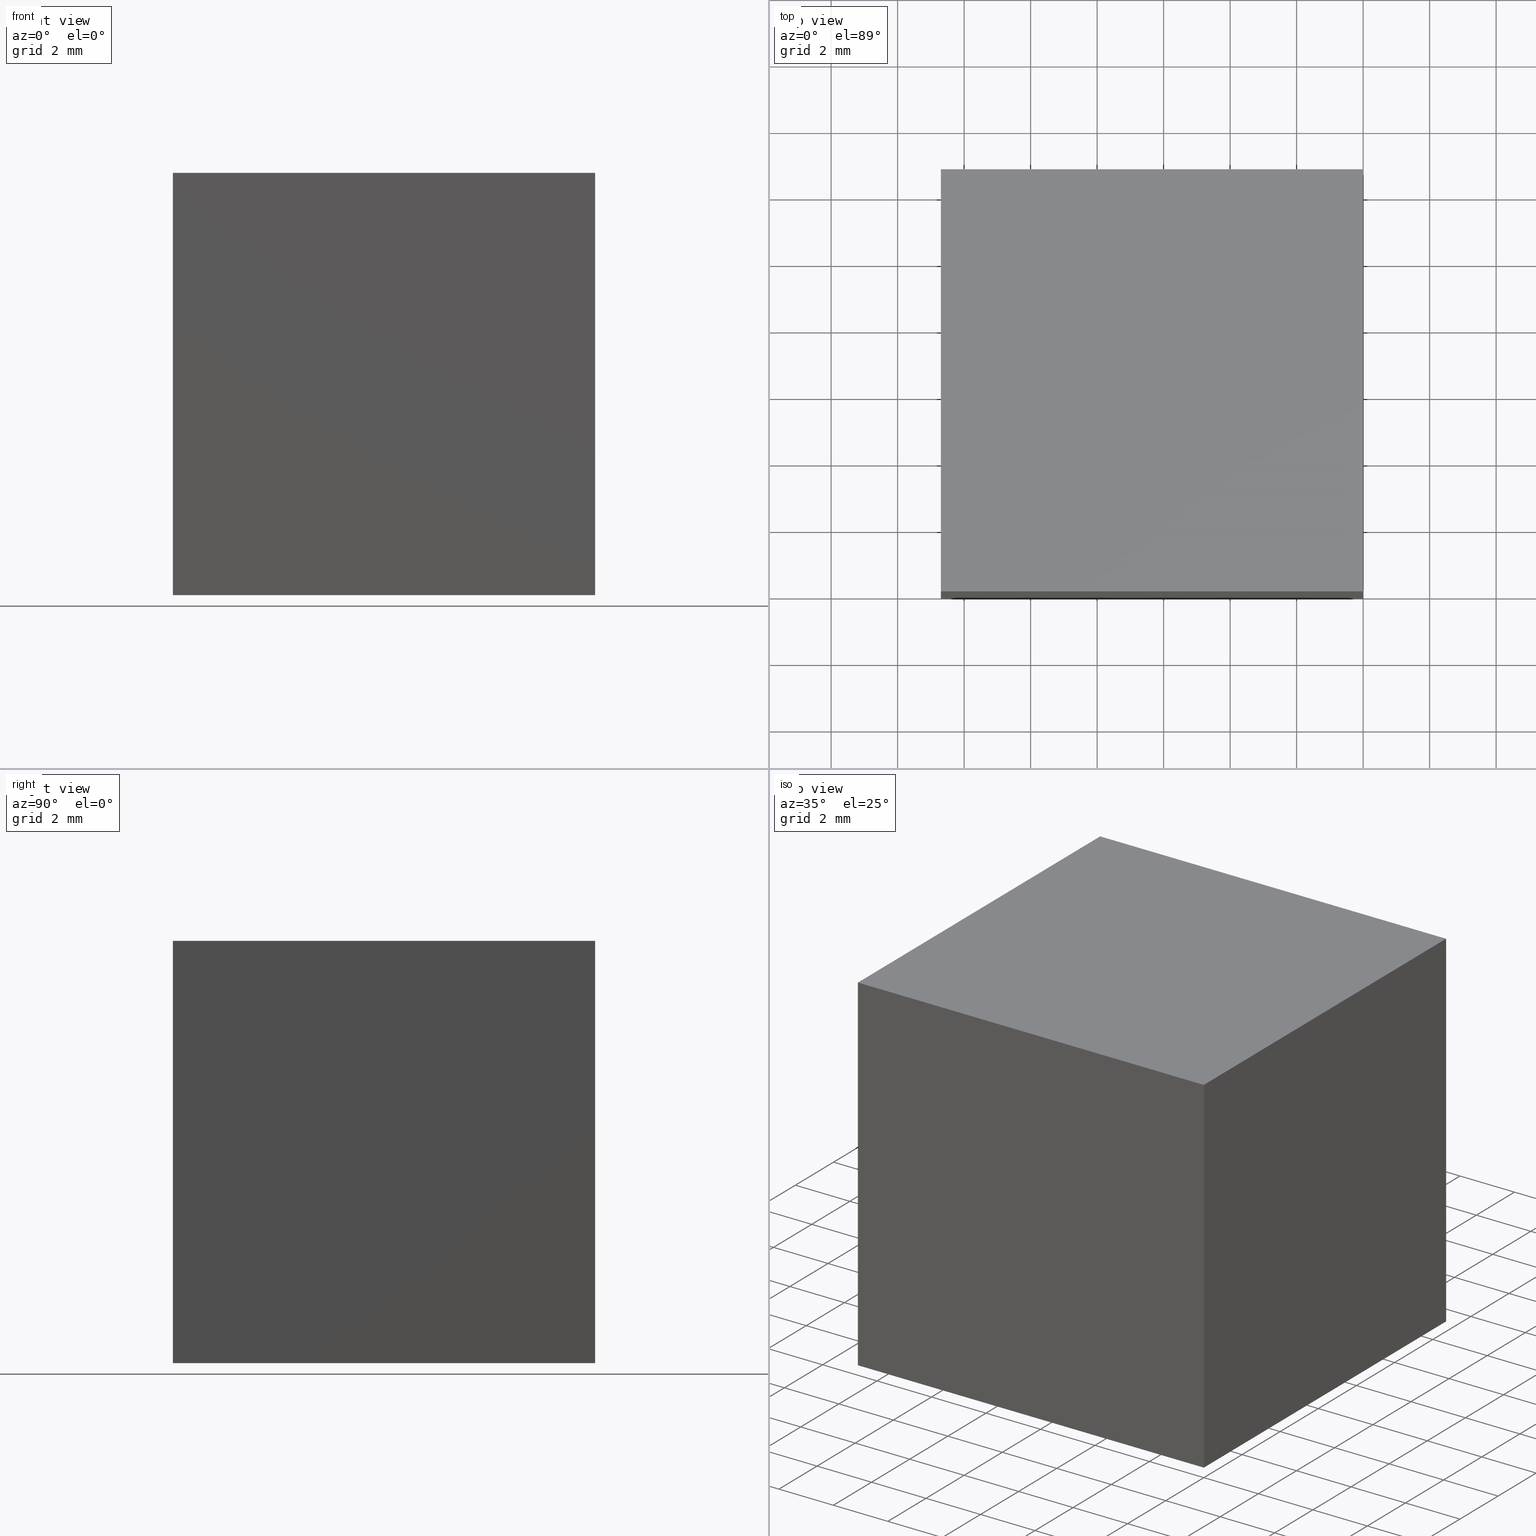
[diagram: canonical four-view strip — front | top / right | iso, engineering-drawing reading convention]
A machine part, canonical four-view strip (front | top / right | iso — engineering-drawing reading convention). The complete STEP part file that produces these views, byte-faithful:
ISO-10303-21;
HEADER;
FILE_DESCRIPTION (( 'STEP AP214' ),
    '1' );
FILE_NAME ('452005.STEP',
    '2019-08-22T06:23:18',
    ( 'user' ),
    ( '΢���й�' ),
    'SwSTEP 2.0',
    'SolidWorks 2016',
    '' );
FILE_SCHEMA (( 'AUTOMOTIVE_DESIGN' ));
ENDSEC;

DATA;
#1 = ORIENTED_EDGE ( 'NONE', *, *, #207, .T. ) ;
#2 = ADVANCED_FACE ( 'NONE', ( #19 ), #66, .T. ) ;
#3 = LINE ( 'NONE', #285, #12 ) ;
#4 = VERTEX_POINT ( 'NONE', #122 ) ;
#5 = PRODUCT_RELATED_PRODUCT_CATEGORY ( 'part', '', ( #282 ) ) ;
#6 = ORIENTED_EDGE ( 'NONE', *, *, #207, .F. ) ;
#7 = CARTESIAN_POINT ( 'NONE',  ( 0.0000000000000000000, 0.0000000000000000000, 0.0000000000000000000 ) ) ;
#8 = VECTOR ( 'NONE', #185, 1000.000000000000000 ) ;
#9 = PRODUCT_DEFINITION_CONTEXT ( 'detailed design', #38, 'design' ) ;
#10 =( GEOMETRIC_REPRESENTATION_CONTEXT ( 3 ) GLOBAL_UNCERTAINTY_ASSIGNED_CONTEXT ( ( #17 ) ) GLOBAL_UNIT_ASSIGNED_CONTEXT ( ( #269, #170, #18 ) ) REPRESENTATION_CONTEXT ( 'NONE', 'WORKASPACE' ) );
#11 = PLANE ( 'NONE',  #239 ) ;
#12 = VECTOR ( 'NONE', #87, 1000.000000000000000 ) ;
#13 = ORIENTED_EDGE ( 'NONE', *, *, #228, .F. ) ;
#14 = PRODUCT_CONTEXT ( 'NONE', #102, 'mechanical' ) ;
#15 = ORIENTED_EDGE ( 'NONE', *, *, #135, .F. ) ;
#16 = LINE ( 'NONE', #101, #190 ) ;
#17 = UNCERTAINTY_MEASURE_WITH_UNIT (LENGTH_MEASURE( 1.000000000000000100E-005 ), #269, 'distance_accuracy_value', 'NONE');
#18 =( NAMED_UNIT ( * ) SI_UNIT ( $, .STERADIAN. ) SOLID_ANGLE_UNIT ( ) );
#19 = FACE_OUTER_BOUND ( 'NONE', #100, .T. ) ;
#20 = LINE ( 'NONE', #195, #35 ) ;
#21 = FILL_AREA_STYLE_COLOUR ( '', #201 ) ;
#22 = AXIS2_PLACEMENT_3D ( 'NONE', #27, #173, #230 ) ;
#23 = CARTESIAN_POINT ( 'NONE',  ( 0.0000000000000000000, 12.69999999999999900, 0.0000000000000000000 ) ) ;
#24 = CARTESIAN_POINT ( 'NONE',  ( -12.69999999999999900, 12.69999999999999900, -12.69999999999999800 ) ) ;
#25 =( LENGTH_UNIT ( ) NAMED_UNIT ( * ) SI_UNIT ( .MILLI., .METRE. ) );
#26 = AXIS2_PLACEMENT_3D ( 'NONE', #65, #229, #44 ) ;
#27 = CARTESIAN_POINT ( 'NONE',  ( -12.69999999999999900, 12.69999999999999900, -12.69999999999999800 ) ) ;
#28 = FACE_OUTER_BOUND ( 'NONE', #131, .T. ) ;
#29 = PRESENTATION_STYLE_ASSIGNMENT (( #198 ) ) ;
#30 = ADVANCED_FACE ( 'NONE', ( #263 ), #222, .T. ) ;
#31 = ORIENTED_EDGE ( 'NONE', *, *, #130, .F. ) ;
#32 = CARTESIAN_POINT ( 'NONE',  ( -12.69999999999999900, 12.69999999999999900, 0.0000000000000000000 ) ) ;
#33 = ORIENTED_EDGE ( 'NONE', *, *, #142, .T. ) ;
#34 = CARTESIAN_POINT ( 'NONE',  ( -12.69999999999999900, 0.0000000000000000000, 0.0000000000000000000 ) ) ;
#35 = VECTOR ( 'NONE', #171, 1000.000000000000000 ) ;
#36 = CARTESIAN_POINT ( 'NONE',  ( -12.69999999999999900, 12.69999999999999900, 0.0000000000000000000 ) ) ;
#37 = DIRECTION ( 'NONE',  ( 0.0000000000000000000, -0.0000000000000000000, 1.000000000000000000 ) ) ;
#38 = APPLICATION_CONTEXT ( 'automotive_design' ) ;
#39 = CARTESIAN_POINT ( 'NONE',  ( 0.0000000000000000000, 0.0000000000000000000, 0.0000000000000000000 ) ) ;
#40 = ORIENTED_EDGE ( 'NONE', *, *, #156, .T. ) ;
#41 = PLANE ( 'NONE',  #136 ) ;
#42 = VERTEX_POINT ( 'NONE', #248 ) ;
#43 = LINE ( 'NONE', #152, #223 ) ;
#44 = DIRECTION ( 'NONE',  ( 0.0000000000000000000, -0.0000000000000000000, 1.000000000000000000 ) ) ;
#45 = SURFACE_SIDE_STYLE ('',( #107 ) ) ;
#46 = CARTESIAN_POINT ( 'NONE',  ( -12.69999999999999900, 12.69999999999999900, 0.0000000000000000000 ) ) ;
#47 = EDGE_LOOP ( 'NONE', ( #31, #297, #13 ) ) ;
#48 = AXIS2_PLACEMENT_3D ( 'NONE', #219, #110, #225 ) ;
#49 = ORIENTED_EDGE ( 'NONE', *, *, #157, .T. ) ;
#50 = LINE ( 'NONE', #274, #74 ) ;
#51 = ADVANCED_FACE ( 'NONE', ( #133 ), #85, .F. ) ;
#52 = ORIENTED_EDGE ( 'NONE', *, *, #114, .T. ) ;
#53 = FACE_OUTER_BOUND ( 'NONE', #256, .T. ) ;
#54 = CARTESIAN_POINT ( 'NONE',  ( 0.0000000000000000000, 12.69999999999999900, 0.0000000000000000000 ) ) ;
#55 = DIRECTION ( 'NONE',  ( -0.0000000000000000000, -1.000000000000000000, -0.0000000000000000000 ) ) ;
#56 = CARTESIAN_POINT ( 'NONE',  ( -12.69999999999999900, 0.0000000000000000000, -12.69999999999999800 ) ) ;
#57 = FACE_OUTER_BOUND ( 'NONE', #91, .T. ) ;
#58 =( LENGTH_UNIT ( ) NAMED_UNIT ( * ) SI_UNIT ( .MILLI., .METRE. ) );
#59 = EDGE_LOOP ( 'NONE', ( #205, #208, #76, #73 ) ) ;
#60 = VECTOR ( 'NONE', #121, 1000.000000000000000 ) ;
#61 = DIRECTION ( 'NONE',  ( 0.7071067811865475700, 0.0000000000000000000, 0.7071067811865474600 ) ) ;
#62 = VERTEX_POINT ( 'NONE', #151 ) ;
#63 = FILL_AREA_STYLE_COLOUR ( '', #287 ) ;
#64 = STYLED_ITEM ( 'NONE', ( #29 ), #111 ) ;
#65 = CARTESIAN_POINT ( 'NONE',  ( 0.0000000000000000000, 12.69999999999999900, 0.0000000000000000000 ) ) ;
#66 = PLANE ( 'NONE',  #26 ) ;
#67 = DIRECTION ( 'NONE',  ( 0.0000000000000000000, 0.0000000000000000000, -1.000000000000000000 ) ) ;
#68 = PLANE ( 'NONE',  #78 ) ;
#69 = CARTESIAN_POINT ( 'NONE',  ( 0.0000000000000000000, 12.69999999999999900, 0.0000000000000000000 ) ) ;
#70 = VECTOR ( 'NONE', #271, 1000.000000000000000 ) ;
#71 = ORIENTED_EDGE ( 'NONE', *, *, #174, .F. ) ;
#72 = EDGE_LOOP ( 'NONE', ( #226, #81, #15, #183 ) ) ;
#73 = ORIENTED_EDGE ( 'NONE', *, *, #259, .T. ) ;
#74 = VECTOR ( 'NONE', #270, 1000.000000000000000 ) ;
#75 = LINE ( 'NONE', #105, #253 ) ;
#76 = ORIENTED_EDGE ( 'NONE', *, *, #243, .F. ) ;
#77 = VECTOR ( 'NONE', #88, 1000.000000000000000 ) ;
#78 = AXIS2_PLACEMENT_3D ( 'NONE', #252, #148, #200 ) ;
#79 = CARTESIAN_POINT ( 'NONE',  ( -12.69999999999999900, 12.69999999999999900, -12.69999999999999800 ) ) ;
#80 = DIRECTION ( 'NONE',  ( -1.000000000000000000, 0.0000000000000000000, 1.365923996832131600E-016 ) ) ;
#81 = ORIENTED_EDGE ( 'NONE', *, *, #259, .F. ) ;
#82 = PLANE ( 'NONE',  #164 ) ;
#83 =( NAMED_UNIT ( * ) SI_UNIT ( $, .STERADIAN. ) SOLID_ANGLE_UNIT ( ) );
#84 = SURFACE_STYLE_FILL_AREA ( #212 ) ;
#85 = PLANE ( 'NONE',  #48 ) ;
#86 = ORIENTED_EDGE ( 'NONE', *, *, #176, .F. ) ;
#87 = DIRECTION ( 'NONE',  ( -0.0000000000000000000, -1.000000000000000000, -0.0000000000000000000 ) ) ;
#88 = DIRECTION ( 'NONE',  ( 0.7071067811865475700, 0.0000000000000000000, 0.7071067811865474600 ) ) ;
#89 = DIRECTION ( 'NONE',  ( 0.0000000000000000000, -1.000000000000000000, 0.0000000000000000000 ) ) ;
#90 = PRESENTATION_LAYER_ASSIGNMENT (  '', '', ( #64 ) ) ;
#91 = EDGE_LOOP ( 'NONE', ( #147, #199, #161, #97 ) ) ;
#92 =( GEOMETRIC_REPRESENTATION_CONTEXT ( 3 ) GLOBAL_UNCERTAINTY_ASSIGNED_CONTEXT ( ( #115 ) ) GLOBAL_UNIT_ASSIGNED_CONTEXT ( ( #25, #150, #300 ) ) REPRESENTATION_CONTEXT ( 'NONE', 'WORKASPACE' ) );
#93 = LINE ( 'NONE', #79, #8 ) ;
#94 = ADVANCED_FACE ( 'NONE', ( #192 ), #68, .T. ) ;
#95 = ORIENTED_EDGE ( 'NONE', *, *, #145, .F. ) ;
#96 = CARTESIAN_POINT ( 'NONE',  ( 0.0000000000000000000, 12.69999999999999900, 0.0000000000000000000 ) ) ;
#97 = ORIENTED_EDGE ( 'NONE', *, *, #233, .T. ) ;
#98 = VECTOR ( 'NONE', #67, 1000.000000000000000 ) ;
#99 = SHAPE_DEFINITION_REPRESENTATION ( #288, #262 ) ;
#100 = EDGE_LOOP ( 'NONE', ( #154, #153, #71 ) ) ;
#101 = CARTESIAN_POINT ( 'NONE',  ( -12.69999999999999900, 12.69999999999999900, -12.69999999999999800 ) ) ;
#102 = APPLICATION_CONTEXT ( 'automotive_design' ) ;
#103 = APPLICATION_PROTOCOL_DEFINITION ( 'draft international standard', 'automotive_design', 1998, #102 ) ;
#104 = VERTEX_POINT ( 'NONE', #194 ) ;
#105 = CARTESIAN_POINT ( 'NONE',  ( -12.69999999999999900, 12.69999999999999900, -12.69999999999999800 ) ) ;
#106 = MECHANICAL_DESIGN_GEOMETRIC_PRESENTATION_REPRESENTATION (  '', ( #64 ), #118 ) ;
#107 = SURFACE_STYLE_FILL_AREA ( #159 ) ;
#108 = DIRECTION ( 'NONE',  ( 0.0000000000000000000, -0.0000000000000000000, 1.000000000000000000 ) ) ;
#109 = LINE ( 'NONE', #289, #290 ) ;
#110 = DIRECTION ( 'NONE',  ( 1.365923996832131600E-016, -0.0000000000000000000, 1.000000000000000000 ) ) ;
#111 = MANIFOLD_SOLID_BREP ( '͹̨-����1', #215 ) ;
#112 = ORIENTED_EDGE ( 'NONE', *, *, #206, .F. ) ;
#113 = ADVANCED_FACE ( 'NONE', ( #53 ), #129, .T. ) ;
#114 = EDGE_CURVE ( 'NONE', #4, #246, #279, .T. ) ;
#115 = UNCERTAINTY_MEASURE_WITH_UNIT (LENGTH_MEASURE( 1.000000000000000100E-005 ), #25, 'distance_accuracy_value', 'NONE');
#116 = VECTOR ( 'NONE', #242, 1000.000000000000000 ) ;
#117 = DIRECTION ( 'NONE',  ( 0.0000000000000000000, 1.000000000000000000, 0.0000000000000000000 ) ) ;
#118 =( GEOMETRIC_REPRESENTATION_CONTEXT ( 3 ) GLOBAL_UNCERTAINTY_ASSIGNED_CONTEXT ( ( #254 ) ) GLOBAL_UNIT_ASSIGNED_CONTEXT ( ( #293, #125, #250 ) ) REPRESENTATION_CONTEXT ( 'NONE', 'WORKASPACE' ) );
#119 = DIRECTION ( 'NONE',  ( -0.0000000000000000000, -1.000000000000000000, -0.0000000000000000000 ) ) ;
#120 = DIRECTION ( 'NONE',  ( -0.0000000000000000000, 0.0000000000000000000, 1.000000000000000000 ) ) ;
#121 = DIRECTION ( 'NONE',  ( -0.0000000000000000000, -0.0000000000000000000, -1.000000000000000000 ) ) ;
#122 = CARTESIAN_POINT ( 'NONE',  ( -12.69999999999999900, 12.69999999999999900, 0.0000000000000000000 ) ) ;
#123 = VERTEX_POINT ( 'NONE', #267 ) ;
#124 = SURFACE_SIDE_STYLE ('',( #231 ) ) ;
#125 =( NAMED_UNIT ( * ) PLANE_ANGLE_UNIT ( ) SI_UNIT ( $, .RADIAN. ) );
#126 = EDGE_LOOP ( 'NONE', ( #6, #249, #33, #132 ) ) ;
#127 = LINE ( 'NONE', #69, #77 ) ;
#128 = DIRECTION ( 'NONE',  ( -0.7071067811865475700, 0.0000000000000000000, -0.7071067811865474600 ) ) ;
#129 = PLANE ( 'NONE',  #163 ) ;
#130 = EDGE_CURVE ( 'NONE', #291, #123, #43, .T. ) ;
#131 = EDGE_LOOP ( 'NONE', ( #281, #86, #232, #52 ) ) ;
#132 = ORIENTED_EDGE ( 'NONE', *, *, #206, .T. ) ;
#133 = FACE_OUTER_BOUND ( 'NONE', #59, .T. ) ;
#134 = VECTOR ( 'NONE', #227, 1000.000000000000000 ) ;
#135 = EDGE_CURVE ( 'NONE', #181, #245, #211, .T. ) ;
#136 = AXIS2_PLACEMENT_3D ( 'NONE', #24, #298, #128 ) ;
#137 = ADVANCED_FACE ( 'NONE', ( #155 ), #209, .F. ) ;
#138 = MANIFOLD_SOLID_BREP ( '͹̨-����2', #177 ) ;
#139 = DIRECTION ( 'NONE',  ( 0.0000000000000000000, 0.0000000000000000000, 1.000000000000000000 ) ) ;
#140 = EDGE_LOOP ( 'NONE', ( #95, #112, #49, #278 ) ) ;
#141 = DIRECTION ( 'NONE',  ( 0.0000000000000000000, -0.0000000000000000000, 1.000000000000000000 ) ) ;
#142 = EDGE_CURVE ( 'NONE', #4, #234, #93, .T. ) ;
#143 = CARTESIAN_POINT ( 'NONE',  ( -12.69999999999999900, -0.0000000000000000000, -12.69999999999999800 ) ) ;
#144 = FILL_AREA_STYLE ('',( #294 ) ) ;
#145 = EDGE_CURVE ( 'NONE', #62, #104, #50, .T. ) ;
#146 = PRESENTATION_STYLE_ASSIGNMENT (( #296 ) ) ;
#147 = ORIENTED_EDGE ( 'NONE', *, *, #130, .T. ) ;
#148 = DIRECTION ( 'NONE',  ( 0.7071067811865474600, 0.0000000000000000000, -0.7071067811865475700 ) ) ;
#149 = DIRECTION ( 'NONE',  ( 0.7071067811865475700, 0.0000000000000000000, 0.7071067811865474600 ) ) ;
#150 =( NAMED_UNIT ( * ) PLANE_ANGLE_UNIT ( ) SI_UNIT ( $, .RADIAN. ) );
#151 = CARTESIAN_POINT ( 'NONE',  ( -12.69999999999999900, -0.0000000000000000000, -12.69999999999999800 ) ) ;
#152 = CARTESIAN_POINT ( 'NONE',  ( -12.69999999999999900, 0.0000000000000000000, -12.69999999999999800 ) ) ;
#153 = ORIENTED_EDGE ( 'NONE', *, *, #142, .F. ) ;
#154 = ORIENTED_EDGE ( 'NONE', *, *, #157, .F. ) ;
#155 = FACE_OUTER_BOUND ( 'NONE', #72, .T. ) ;
#156 = EDGE_CURVE ( 'NONE', #104, #246, #162, .T. ) ;
#157 = EDGE_CURVE ( 'NONE', #234, #42, #127, .T. ) ;
#158 = ORIENTED_EDGE ( 'NONE', *, *, #135, .T. ) ;
#159 = FILL_AREA_STYLE ('',( #63 ) ) ;
#160 = CARTESIAN_POINT ( 'NONE',  ( -12.69999999999999900, 0.0000000000000000000, 0.0000000000000000000 ) ) ;
#161 = ORIENTED_EDGE ( 'NONE', *, *, #187, .F. ) ;
#162 = LINE ( 'NONE', #160, #184 ) ;
#163 = AXIS2_PLACEMENT_3D ( 'NONE', #23, #221, #108 ) ;
#164 = AXIS2_PLACEMENT_3D ( 'NONE', #251, #216, #37 ) ;
#165 = DIRECTION ( 'NONE',  ( -1.000000000000000000, 0.0000000000000000000, 1.365923996832131600E-016 ) ) ;
#166 = LINE ( 'NONE', #264, #299 ) ;
#167 = ORIENTED_EDGE ( 'NONE', *, *, #243, .T. ) ;
#168 = PLANE ( 'NONE',  #197 ) ;
#169 = APPLICATION_PROTOCOL_DEFINITION ( 'draft international standard', 'automotive_design', 1998, #38 ) ;
#170 =( NAMED_UNIT ( * ) PLANE_ANGLE_UNIT ( ) SI_UNIT ( $, .RADIAN. ) );
#171 = DIRECTION ( 'NONE',  ( 0.0000000000000000000, -1.000000000000000000, 0.0000000000000000000 ) ) ;
#172 = SURFACE_STYLE_USAGE ( .BOTH. , #45 ) ;
#173 = DIRECTION ( 'NONE',  ( -1.000000000000000000, 0.0000000000000000000, 0.0000000000000000000 ) ) ;
#174 = EDGE_CURVE ( 'NONE', #42, #4, #257, .T. ) ;
#175 = LINE ( 'NONE', #188, #70 ) ;
#176 = EDGE_CURVE ( 'NONE', #42, #104, #20, .T. ) ;
#177 = CLOSED_SHELL ( 'NONE', ( #94, #30, #238, #2, #258 ) ) ;
#178 = STYLED_ITEM ( 'NONE', ( #235 ), #138 ) ;
#179 = ADVANCED_FACE ( 'NONE', ( #57 ), #41, .F. ) ;
#180 = LINE ( 'NONE', #143, #60 ) ;
#181 = VERTEX_POINT ( 'NONE', #96 ) ;
#182 = VECTOR ( 'NONE', #80, 1000.000000000000000 ) ;
#183 = ORIENTED_EDGE ( 'NONE', *, *, #193, .T. ) ;
#184 = VECTOR ( 'NONE', #240, 1000.000000000000000 ) ;
#185 = DIRECTION ( 'NONE',  ( -0.0000000000000000000, -0.0000000000000000000, -1.000000000000000000 ) ) ;
#186 = CARTESIAN_POINT ( 'NONE',  ( -12.69999999999999900, 12.69999999999999900, -12.69999999999999800 ) ) ;
#187 = EDGE_CURVE ( 'NONE', #203, #181, #75, .T. ) ;
#188 = CARTESIAN_POINT ( 'NONE',  ( -12.69999999999999900, 12.69999999999999900, -12.69999999999999800 ) ) ;
#189 = FACE_OUTER_BOUND ( 'NONE', #47, .T. ) ;
#190 = VECTOR ( 'NONE', #55, 1000.000000000000000 ) ;
#191 = SURFACE_SIDE_STYLE ('',( #84 ) ) ;
#192 = FACE_OUTER_BOUND ( 'NONE', #140, .T. ) ;
#193 = EDGE_CURVE ( 'NONE', #181, #123, #3, .T. ) ;
#194 = CARTESIAN_POINT ( 'NONE',  ( 0.0000000000000000000, 0.0000000000000000000, 0.0000000000000000000 ) ) ;
#195 = CARTESIAN_POINT ( 'NONE',  ( 0.0000000000000000000, 12.69999999999999900, 0.0000000000000000000 ) ) ;
#196 = AXIS2_PLACEMENT_3D ( 'NONE', #54, #283, #139 ) ;
#197 = AXIS2_PLACEMENT_3D ( 'NONE', #36, #120, #292 ) ;
#198 = SURFACE_STYLE_USAGE ( .BOTH. , #191 ) ;
#199 = ORIENTED_EDGE ( 'NONE', *, *, #193, .F. ) ;
#200 = DIRECTION ( 'NONE',  ( -0.7071067811865475700, 0.0000000000000000000, -0.7071067811865474600 ) ) ;
#201 = COLOUR_RGB ( '',1.000000000000000000, 1.000000000000000000, 1.000000000000000000 ) ;
#202 = UNCERTAINTY_MEASURE_WITH_UNIT (LENGTH_MEASURE( 1.000000000000000100E-005 ), #58, 'distance_accuracy_value', 'NONE');
#203 = VERTEX_POINT ( 'NONE', #244 ) ;
#204 = ADVANCED_FACE ( 'NONE', ( #189 ), #82, .F. ) ;
#205 = ORIENTED_EDGE ( 'NONE', *, *, #276, .T. ) ;
#206 = EDGE_CURVE ( 'NONE', #234, #62, #175, .T. ) ;
#207 = EDGE_CURVE ( 'NONE', #246, #62, #180, .T. ) ;
#208 = ORIENTED_EDGE ( 'NONE', *, *, #233, .F. ) ;
#209 = PLANE ( 'NONE',  #196 ) ;
#210 = PRESENTATION_LAYER_ASSIGNMENT (  '', '', ( #178 ) ) ;
#211 = LINE ( 'NONE', #273, #98 ) ;
#212 = FILL_AREA_STYLE ('',( #21 ) ) ;
#213 =( GEOMETRIC_REPRESENTATION_CONTEXT ( 3 ) GLOBAL_UNCERTAINTY_ASSIGNED_CONTEXT ( ( #202 ) ) GLOBAL_UNIT_ASSIGNED_CONTEXT ( ( #58, #218, #83 ) ) REPRESENTATION_CONTEXT ( 'NONE', 'WORKASPACE' ) );
#214 = CARTESIAN_POINT ( 'NONE',  ( 0.0000000000000000000, 12.69999999999999900, -12.69999999999999900 ) ) ;
#215 = CLOSED_SHELL ( 'NONE', ( #179, #137, #51, #113, #204 ) ) ;
#216 = DIRECTION ( 'NONE',  ( -0.0000000000000000000, 1.000000000000000000, 0.0000000000000000000 ) ) ;
#217 = DIRECTION ( 'NONE',  ( 1.000000000000000000, 0.0000000000000000000, 0.0000000000000000000 ) ) ;
#218 =( NAMED_UNIT ( * ) PLANE_ANGLE_UNIT ( ) SI_UNIT ( $, .RADIAN. ) );
#219 = CARTESIAN_POINT ( 'NONE',  ( 0.0000000000000000000, 12.69999999999999900, -12.69999999999999900 ) ) ;
#220 = VERTEX_POINT ( 'NONE', #268 ) ;
#221 = DIRECTION ( 'NONE',  ( -0.0000000000000000000, 1.000000000000000000, 0.0000000000000000000 ) ) ;
#222 = PLANE ( 'NONE',  #22 ) ;
#223 = VECTOR ( 'NONE', #61, 1000.000000000000000 ) ;
#224 = CARTESIAN_POINT ( 'NONE',  ( 0.0000000000000000000, 0.0000000000000000000, 0.0000000000000000000 ) ) ;
#225 = DIRECTION ( 'NONE',  ( 1.000000000000000000, 0.0000000000000000000, -1.365923996832131600E-016 ) ) ;
#226 = ORIENTED_EDGE ( 'NONE', *, *, #228, .T. ) ;
#227 = DIRECTION ( 'NONE',  ( -1.000000000000000000, -0.0000000000000000000, -0.0000000000000000000 ) ) ;
#228 = EDGE_CURVE ( 'NONE', #123, #220, #260, .T. ) ;
#229 = DIRECTION ( 'NONE',  ( 0.0000000000000000000, 1.000000000000000000, 0.0000000000000000000 ) ) ;
#230 = DIRECTION ( 'NONE',  ( 0.0000000000000000000, 0.0000000000000000000, 1.000000000000000000 ) ) ;
#231 = SURFACE_STYLE_FILL_AREA ( #144 ) ;
#232 = ORIENTED_EDGE ( 'NONE', *, *, #174, .T. ) ;
#233 = EDGE_CURVE ( 'NONE', #203, #291, #16, .T. ) ;
#234 = VERTEX_POINT ( 'NONE', #186 ) ;
#235 = PRESENTATION_STYLE_ASSIGNMENT (( #172 ) ) ;
#236 = MECHANICAL_DESIGN_GEOMETRIC_PRESENTATION_REPRESENTATION (  '', ( #178 ), #92 ) ;
#237 = COLOUR_RGB ( '',1.000000000000000000, 1.000000000000000000, 1.000000000000000000 ) ;
#238 = ADVANCED_FACE ( 'NONE', ( #28 ), #168, .T. ) ;
#239 = AXIS2_PLACEMENT_3D ( 'NONE', #7, #117, #141 ) ;
#240 = DIRECTION ( 'NONE',  ( -1.000000000000000000, -0.0000000000000000000, -0.0000000000000000000 ) ) ;
#241 = DIRECTION ( 'NONE',  ( 0.0000000000000000000, 0.0000000000000000000, 1.000000000000000000 ) ) ;
#242 = DIRECTION ( 'NONE',  ( 0.0000000000000000000, 0.0000000000000000000, -1.000000000000000000 ) ) ;
#243 = EDGE_CURVE ( 'NONE', #245, #203, #255, .T. ) ;
#244 = CARTESIAN_POINT ( 'NONE',  ( -12.69999999999999900, 12.69999999999999900, -12.69999999999999800 ) ) ;
#245 = VERTEX_POINT ( 'NONE', #266 ) ;
#246 = VERTEX_POINT ( 'NONE', #34 ) ;
#247 = FACE_OUTER_BOUND ( 'NONE', #284, .T. ) ;
#248 = CARTESIAN_POINT ( 'NONE',  ( 0.0000000000000000000, 12.69999999999999900, 0.0000000000000000000 ) ) ;
#249 = ORIENTED_EDGE ( 'NONE', *, *, #114, .F. ) ;
#250 =( NAMED_UNIT ( * ) SI_UNIT ( $, .STERADIAN. ) SOLID_ANGLE_UNIT ( ) );
#251 = CARTESIAN_POINT ( 'NONE',  ( 0.0000000000000000000, 0.0000000000000000000, 0.0000000000000000000 ) ) ;
#252 = CARTESIAN_POINT ( 'NONE',  ( 0.0000000000000000000, 12.69999999999999900, 0.0000000000000000000 ) ) ;
#253 = VECTOR ( 'NONE', #149, 1000.000000000000000 ) ;
#254 = UNCERTAINTY_MEASURE_WITH_UNIT (LENGTH_MEASURE( 1.000000000000000100E-005 ), #293, 'distance_accuracy_value', 'NONE');
#255 = LINE ( 'NONE', #214, #182 ) ;
#256 = EDGE_LOOP ( 'NONE', ( #272, #158, #167 ) ) ;
#257 = LINE ( 'NONE', #32, #134 ) ;
#258 = ADVANCED_FACE ( 'NONE', ( #247 ), #11, .F. ) ;
#259 = EDGE_CURVE ( 'NONE', #245, #220, #166, .T. ) ;
#260 = LINE ( 'NONE', #224, #116 ) ;
#261 = AXIS2_PLACEMENT_3D ( 'NONE', #39, #241, #217 ) ;
#262 = ADVANCED_BREP_SHAPE_REPRESENTATION ( '452005', ( #111, #138, #261 ), #213 ) ;
#263 = FACE_OUTER_BOUND ( 'NONE', #126, .T. ) ;
#264 = CARTESIAN_POINT ( 'NONE',  ( 0.0000000000000000000, 12.69999999999999900, -12.69999999999999900 ) ) ;
#265 = STYLED_ITEM ( 'NONE', ( #146 ), #262 ) ;
#266 = CARTESIAN_POINT ( 'NONE',  ( 0.0000000000000000000, 12.69999999999999900, -12.69999999999999900 ) ) ;
#267 = CARTESIAN_POINT ( 'NONE',  ( 0.0000000000000000000, 0.0000000000000000000, 0.0000000000000000000 ) ) ;
#268 = CARTESIAN_POINT ( 'NONE',  ( 0.0000000000000000000, 0.0000000000000000000, -12.69999999999999900 ) ) ;
#269 =( LENGTH_UNIT ( ) NAMED_UNIT ( * ) SI_UNIT ( .MILLI., .METRE. ) );
#270 = DIRECTION ( 'NONE',  ( 0.7071067811865475700, 0.0000000000000000000, 0.7071067811865474600 ) ) ;
#271 = DIRECTION ( 'NONE',  ( 0.0000000000000000000, -1.000000000000000000, 0.0000000000000000000 ) ) ;
#272 = ORIENTED_EDGE ( 'NONE', *, *, #187, .T. ) ;
#273 = CARTESIAN_POINT ( 'NONE',  ( 0.0000000000000000000, 12.69999999999999900, 0.0000000000000000000 ) ) ;
#274 = CARTESIAN_POINT ( 'NONE',  ( 0.0000000000000000000, 0.0000000000000000000, 0.0000000000000000000 ) ) ;
#275 = VECTOR ( 'NONE', #89, 1000.000000000000000 ) ;
#276 = EDGE_CURVE ( 'NONE', #220, #291, #109, .T. ) ;
#277 = PRODUCT_DEFINITION ( 'δ֪', '', #295, #9 ) ;
#278 = ORIENTED_EDGE ( 'NONE', *, *, #176, .T. ) ;
#279 = LINE ( 'NONE', #46, #275 ) ;
#280 = PRESENTATION_LAYER_ASSIGNMENT (  '', '', ( #265 ) ) ;
#281 = ORIENTED_EDGE ( 'NONE', *, *, #156, .F. ) ;
#282 = PRODUCT ( '452005', '452005', '', ( #14 ) ) ;
#283 = DIRECTION ( 'NONE',  ( -1.000000000000000000, 0.0000000000000000000, 0.0000000000000000000 ) ) ;
#284 = EDGE_LOOP ( 'NONE', ( #286, #40, #1 ) ) ;
#285 = CARTESIAN_POINT ( 'NONE',  ( 0.0000000000000000000, 12.69999999999999900, 0.0000000000000000000 ) ) ;
#286 = ORIENTED_EDGE ( 'NONE', *, *, #145, .T. ) ;
#287 = COLOUR_RGB ( '',1.000000000000000000, 1.000000000000000000, 1.000000000000000000 ) ;
#288 = PRODUCT_DEFINITION_SHAPE ( 'NONE', 'NONE',  #277 ) ;
#289 = CARTESIAN_POINT ( 'NONE',  ( 0.0000000000000000000, 0.0000000000000000000, -12.69999999999999900 ) ) ;
#290 = VECTOR ( 'NONE', #165, 1000.000000000000000 ) ;
#291 = VERTEX_POINT ( 'NONE', #56 ) ;
#292 = DIRECTION ( 'NONE',  ( 1.000000000000000000, 0.0000000000000000000, 0.0000000000000000000 ) ) ;
#293 =( LENGTH_UNIT ( ) NAMED_UNIT ( * ) SI_UNIT ( .MILLI., .METRE. ) );
#294 = FILL_AREA_STYLE_COLOUR ( '', #237 ) ;
#295 = PRODUCT_DEFINITION_FORMATION_WITH_SPECIFIED_SOURCE ( '�κ�', '', #282, .NOT_KNOWN. ) ;
#296 = SURFACE_STYLE_USAGE ( .BOTH. , #124 ) ;
#297 = ORIENTED_EDGE ( 'NONE', *, *, #276, .F. ) ;
#298 = DIRECTION ( 'NONE',  ( 0.7071067811865474600, 0.0000000000000000000, -0.7071067811865475700 ) ) ;
#299 = VECTOR ( 'NONE', #119, 1000.000000000000000 ) ;
#300 =( NAMED_UNIT ( * ) SI_UNIT ( $, .STERADIAN. ) SOLID_ANGLE_UNIT ( ) );
#301 = MECHANICAL_DESIGN_GEOMETRIC_PRESENTATION_REPRESENTATION (  '', ( #265 ), #10 ) ;
ENDSEC;
END-ISO-10303-21;
